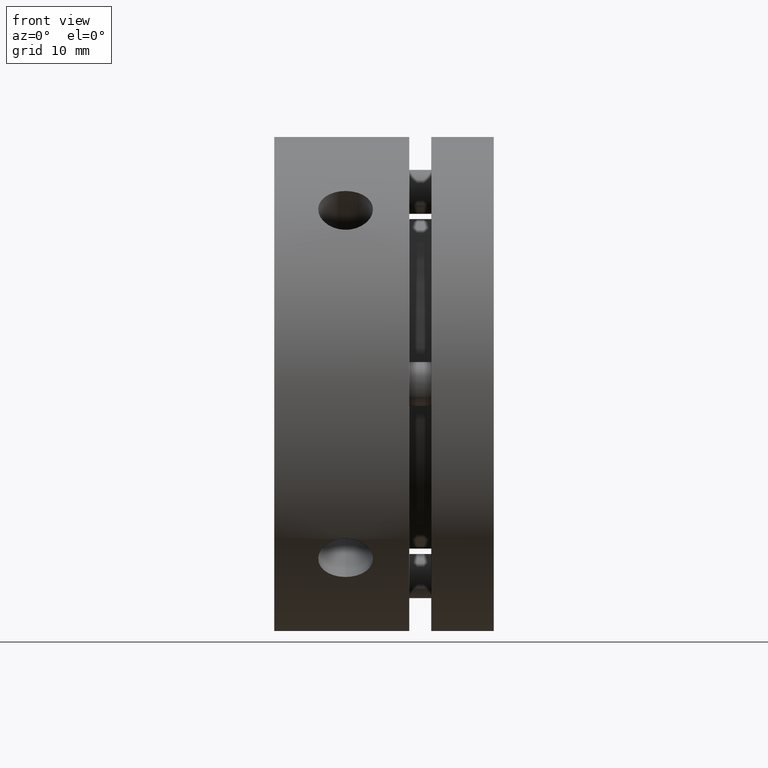
[diagram: clean part render]
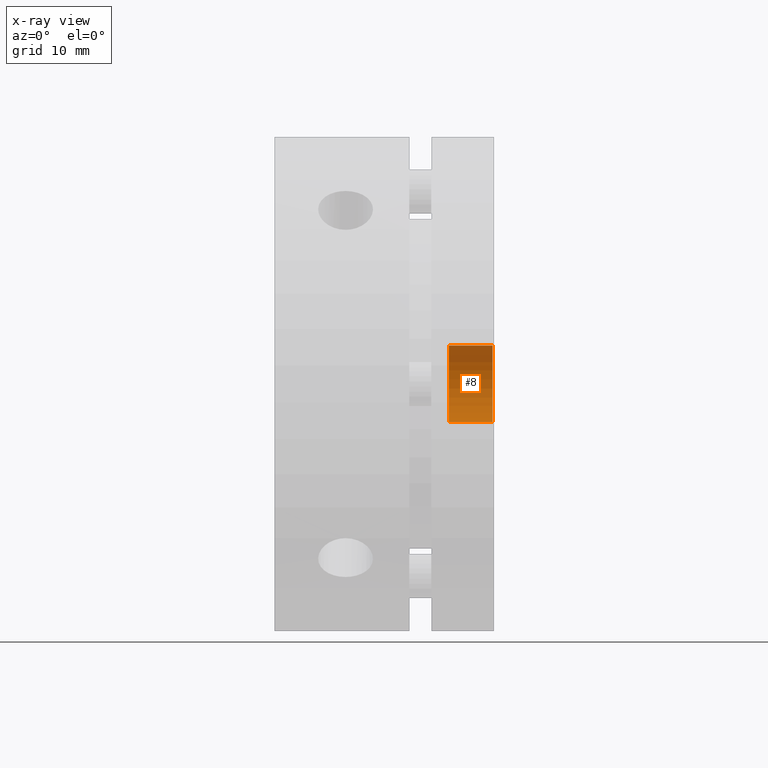
[diagram: x-ray — body ghosted, one internal face saturated and labeled with its STEP entity id]
A machine part, front view, then the same camera in x-ray: the body is ghosted and one INTERNAL B-rep face — a face not visible from any outside direction — is saturated and labeled: STEP entity #8.
In plain terms, the highlighted cylindrical surface (partial cylindrical patch) has radius 3.5 mm, axis along (-1, 0, -0).
Its self-contained STEP definition (entity closure, byte-faithful):
#8 = ADVANCED_FACE ( 'NONE', ( #2335 ), #2340, .T. ) ;
#126 = DIRECTION ( 'NONE',  ( 0.0000000000000000000, 0.0000000000000000000, -1.000000000000000000 ) ) ;
#130 = DIRECTION ( 'NONE',  ( -0.0000000000000000000, -1.000000000000000000, -0.0000000000000000000 ) ) ;
#131 = CARTESIAN_POINT ( 'NONE',  ( 0.0000000000000000000, 4.000000000000000000, 0.0000000000000000000 ) ) ;
#457 = CARTESIAN_POINT ( 'NONE',  ( 0.0000000000000000000, 4.000000000000000000, -3.500000000000000000 ) ) ;
#486 = CARTESIAN_POINT ( 'NONE',  ( 4.286263797015736600E-016, 0.0000000000000000000, 3.500000000000000000 ) ) ;
#493 = CARTESIAN_POINT ( 'NONE',  ( 4.286263797015736600E-016, 4.000000000000000000, 3.500000000000000000 ) ) ;
#499 = CARTESIAN_POINT ( 'NONE',  ( 0.0000000000000000000, 0.0000000000000000000, -3.500000000000000000 ) ) ;
#655 = EDGE_LOOP ( 'NONE', ( #757, #758, #759, #760 ) ) ;
#757 = ORIENTED_EDGE ( 'NONE', *, *, #3379, .F. ) ;
#758 = ORIENTED_EDGE ( 'NONE', *, *, #3404, .F. ) ;
#759 = ORIENTED_EDGE ( 'NONE', *, *, #3399, .T. ) ;
#760 = ORIENTED_EDGE ( 'NONE', *, *, #3378, .T. ) ;
#1151 = DIRECTION ( 'NONE',  ( -0.0000000000000000000, -1.000000000000000000, -0.0000000000000000000 ) ) ;
#1153 = CARTESIAN_POINT ( 'NONE',  ( 4.286263797015736600E-016, 4.000000000000000000, 3.500000000000000000 ) ) ;
#1154 = CARTESIAN_POINT ( 'NONE',  ( 0.0000000000000000000, 0.0000000000000000000, 0.0000000000000000000 ) ) ;
#1155 = DIRECTION ( 'NONE',  ( 0.0000000000000000000, 1.000000000000000000, 0.0000000000000000000 ) ) ;
#1156 = DIRECTION ( 'NONE',  ( 0.0000000000000000000, 0.0000000000000000000, 1.000000000000000000 ) ) ;
#1197 = DIRECTION ( 'NONE',  ( -0.0000000000000000000, -1.000000000000000000, -0.0000000000000000000 ) ) ;
#1202 = CARTESIAN_POINT ( 'NONE',  ( 0.0000000000000000000, 4.000000000000000000, -3.500000000000000000 ) ) ;
#1221 = CARTESIAN_POINT ( 'NONE',  ( 0.0000000000000000000, 4.000000000000000000, 0.0000000000000000000 ) ) ;
#1222 = DIRECTION ( 'NONE',  ( 0.0000000000000000000, 1.000000000000000000, 0.0000000000000000000 ) ) ;
#1223 = DIRECTION ( 'NONE',  ( 0.0000000000000000000, 0.0000000000000000000, 1.000000000000000000 ) ) ;
#1942 = VERTEX_POINT ( 'NONE', #457 ) ;
#2020 = VERTEX_POINT ( 'NONE', #486 ) ;
#2027 = VERTEX_POINT ( 'NONE', #493 ) ;
#2033 = VERTEX_POINT ( 'NONE', #499 ) ;
#2335 = FACE_OUTER_BOUND ( 'NONE', #655, .T. ) ;
#2340 = CYLINDRICAL_SURFACE ( 'NONE', #3546, 3.500000000000000000 ) ;
#2664 = AXIS2_PLACEMENT_3D ( 'NONE', #1154, #1155, #1156 ) ;
#2678 = AXIS2_PLACEMENT_3D ( 'NONE', #1221, #1222, #1223 ) ;
#2826 = LINE ( 'NONE', #1153, #2832 ) ;
#2830 = CIRCLE ( 'NONE', #2664, 3.500000000000000000 ) ;
#2832 = VECTOR ( 'NONE', #1151, 1000.000000000000000 ) ;
#2860 = LINE ( 'NONE', #1202, #2862 ) ;
#2862 = VECTOR ( 'NONE', #1197, 1000.000000000000000 ) ;
#2867 = CIRCLE ( 'NONE', #2678, 3.500000000000000000 ) ;
#3378 = EDGE_CURVE ( 'NONE', #2033, #2020, #2830, .T. ) ;
#3379 = EDGE_CURVE ( 'NONE', #2027, #2020, #2826, .T. ) ;
#3399 = EDGE_CURVE ( 'NONE', #1942, #2033, #2860, .T. ) ;
#3404 = EDGE_CURVE ( 'NONE', #1942, #2027, #2867, .T. ) ;
#3546 = AXIS2_PLACEMENT_3D ( 'NONE', #131, #130, #126 ) ;